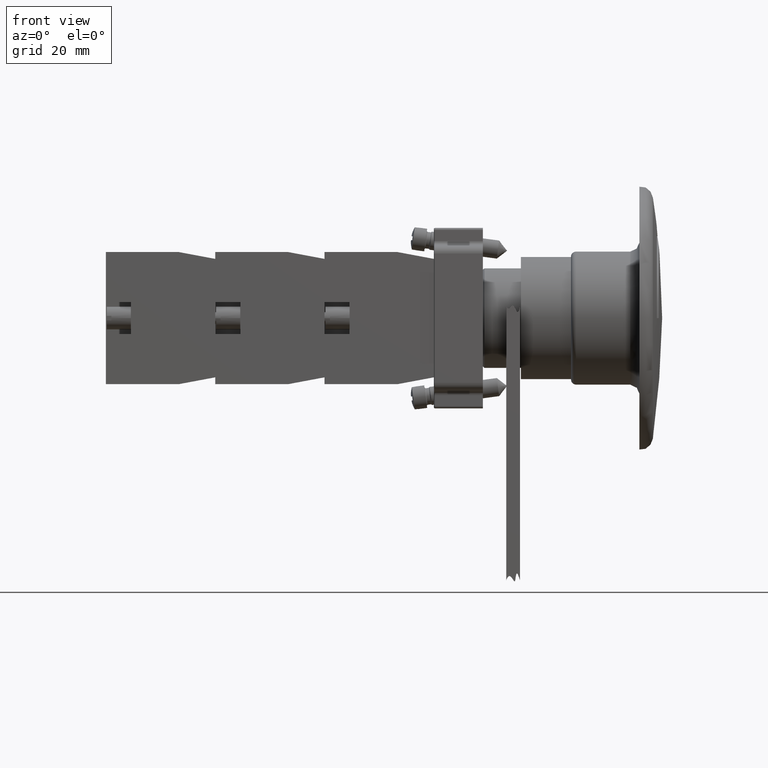
[diagram: clean part render]
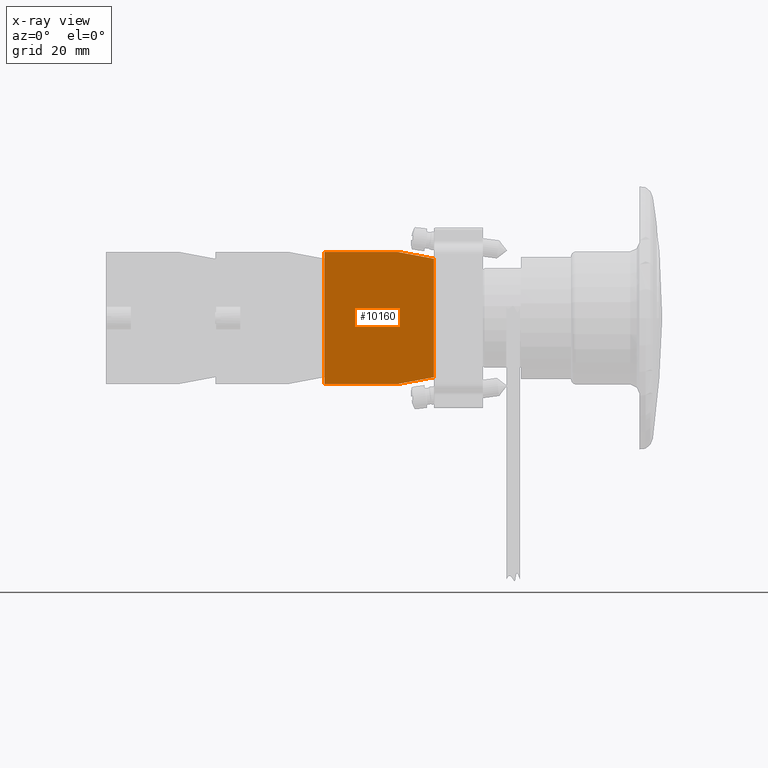
[diagram: x-ray — body ghosted, one internal face saturated and labeled with its STEP entity id]
A machine part, front view, then the same camera in x-ray: the body is ghosted and one INTERNAL B-rep face — a face not visible from any outside direction — is saturated and labeled: STEP entity #10160.
In plain terms, the highlighted planar face has unit normal (0, -1, -0).
Its self-contained STEP definition (entity closure, byte-faithful):
#8465=CARTESIAN_POINT('',(-44.936741828918471,23.797073323279623,0.0));
#8466=VERTEX_POINT('',#8465);
#8473=CARTESIAN_POINT('',(-44.936741828918457,7.797073323279626,0.0));
#8474=VERTEX_POINT('',#8473);
#8475=CARTESIAN_POINT('',(-44.936741828918457,7.797073323279626,0.0));
#8476=DIRECTION('',(0.0,1.0,0.0));
#8477=VECTOR('',#8476,15.999999999999996);
#8478=LINE('',#8475,#8477);
#8479=EDGE_CURVE('',#8474,#8466,#8478,.T.);
#8656=CARTESIAN_POINT('',(-43.436741828918457,-0.202926676720380,0.0));
#8657=VERTEX_POINT('',#8656);
#8664=CARTESIAN_POINT('',(-17.436741828918457,-0.202926676720377,0.0));
#8665=VERTEX_POINT('',#8664);
#8666=CARTESIAN_POINT('',(-17.436741828918457,-0.202926676720377,0.0));
#8667=DIRECTION('',(-1.0,0.0,0.0));
#8668=VECTOR('',#8667,26.0);
#8669=LINE('',#8666,#8668);
#8670=EDGE_CURVE('',#8665,#8657,#8669,.T.);
#10014=CARTESIAN_POINT('',(-15.936741828918466,23.797073323279626,0.0));
#10015=VERTEX_POINT('',#10014);
#10022=CARTESIAN_POINT('',(-44.936741828918471,23.797073323279623,0.0));
#10023=DIRECTION('',(1.0,0.0,0.0));
#10024=VECTOR('',#10023,29.000000000000007);
#10025=LINE('',#10022,#10024);
#10026=EDGE_CURVE('',#8466,#10015,#10025,.T.);
#10062=CARTESIAN_POINT('',(-15.936741828918466,7.797073323279626,0.0));
#10063=VERTEX_POINT('',#10062);
#10070=CARTESIAN_POINT('',(-15.936741828918466,23.797073323279626,0.0));
#10071=DIRECTION('',(0.0,-1.0,0.0));
#10072=VECTOR('',#10071,16.0);
#10073=LINE('',#10070,#10072);
#10074=EDGE_CURVE('',#10015,#10063,#10073,.T.);
#10102=CARTESIAN_POINT('',(-15.936741828918466,7.797073323279626,0.0));
#10103=DIRECTION('',(-0.184288535050184,-0.982872186934322,0.0));
#10104=VECTOR('',#10103,8.139410298049855);
#10105=LINE('',#10102,#10104);
#10106=EDGE_CURVE('',#10063,#8665,#10105,.T.);
#10119=CARTESIAN_POINT('',(-43.436741828918457,-0.202926676720380,0.0));
#10120=DIRECTION('',(-0.184288535050185,0.982872186934322,0.0));
#10121=VECTOR('',#10120,8.139410298049860);
#10122=LINE('',#10119,#10121);
#10123=EDGE_CURVE('',#8657,#8474,#10122,.T.);
#10147=CARTESIAN_POINT('',(-30.436741828918464,12.124046801833057,0.0));
#10148=DIRECTION('',(0.0,0.0,1.0));
#10149=DIRECTION('',(1.0,0.0,0.0));
#10150=AXIS2_PLACEMENT_3D('',#10147,#10148,#10149);
#10151=PLANE('',#10150);
#10152=ORIENTED_EDGE('',*,*,#10026,.T.);
#10153=ORIENTED_EDGE('',*,*,#10074,.T.);
#10154=ORIENTED_EDGE('',*,*,#10106,.T.);
#10155=ORIENTED_EDGE('',*,*,#8670,.T.);
#10156=ORIENTED_EDGE('',*,*,#10123,.T.);
#10157=ORIENTED_EDGE('',*,*,#8479,.T.);
#10158=EDGE_LOOP('',(#10152,#10153,#10154,#10155,#10156,#10157));
#10159=FACE_OUTER_BOUND('',#10158,.T.);
#10160=ADVANCED_FACE('',(#10159),#10151,.F.);